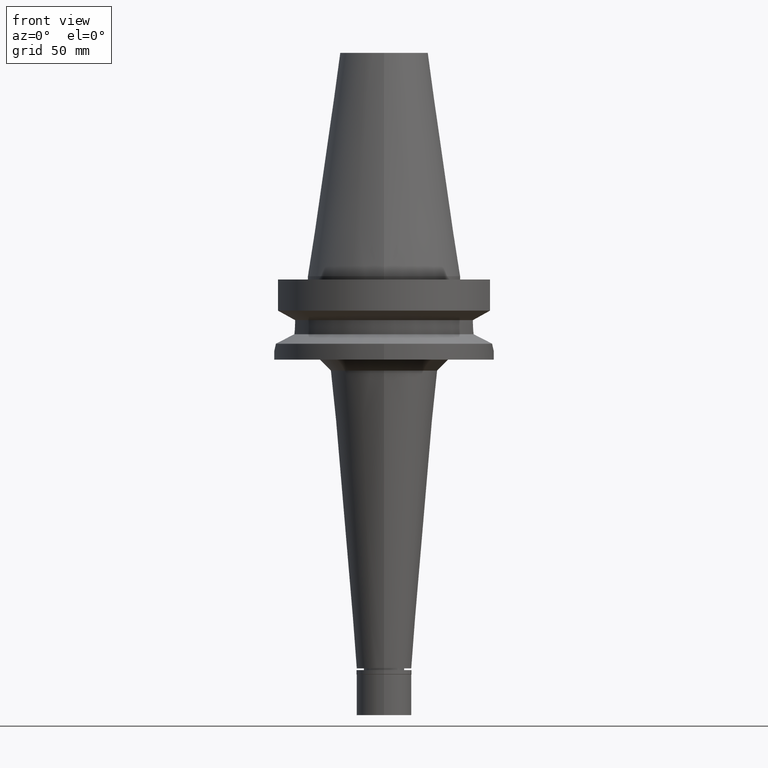
[diagram: clean part render]
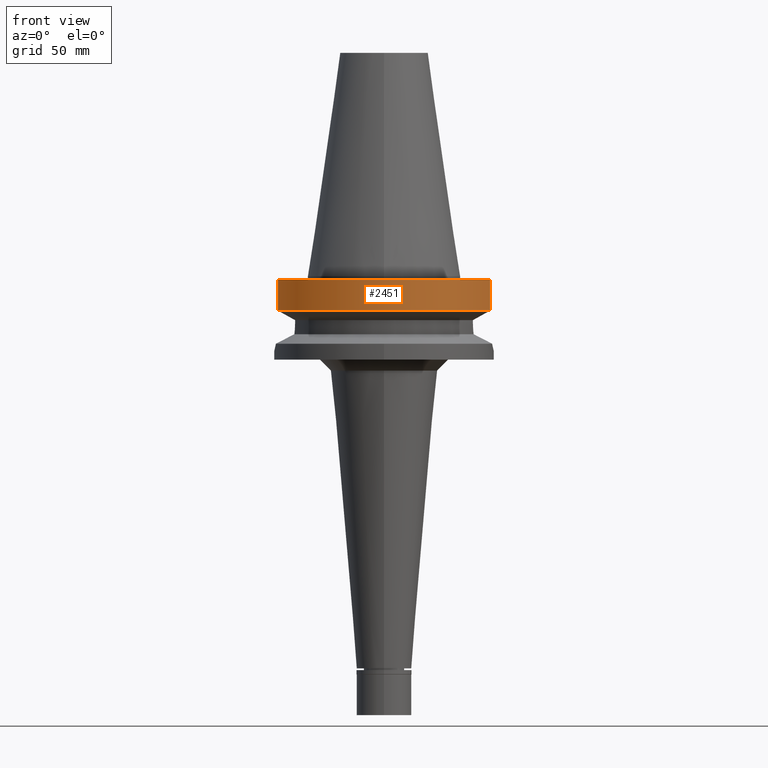
[diagram: same view with one face highlighted and labeled with its STEP entity id]
A machine part, front view. The second image highlights one B-rep face of the part: STEP entity #2451.
In plain terms, the highlighted cylindrical surface (partial cylindrical patch) has radius 50 mm, axis along (0, 0, -1).
Its self-contained STEP definition (entity closure, byte-faithful):
#104 = CARTESIAN_POINT ( 'NONE',  ( 0.0000000000000000000, 1.006319759053999930E-14, -15.66269223573000069 ) ) ;
#137 = DIRECTION ( 'NONE',  ( 0.0000000000000000000, 0.0000000000000000000, 1.000000000000000000 ) ) ;
#398 = DIRECTION ( 'NONE',  ( -7.245256712558713783E-08, -2.724472421615890928E-07, -0.9999999999999603650 ) ) ;
#512 = EDGE_LOOP ( 'NONE', ( #2361, #1744, #2070, #2434 ) ) ;
#591 = AXIS2_PLACEMENT_3D ( 'NONE', #104, #137, #2629 ) ;
#739 = VERTEX_POINT ( 'NONE', #1799 ) ;
#920 = VERTEX_POINT ( 'NONE', #2355 ) ;
#953 = VERTEX_POINT ( 'NONE', #2839 ) ;
#956 = CARTESIAN_POINT ( 'NONE',  ( -48.32056912814000071, -12.85000385727999905, -15.66265768250999990 ) ) ;
#1167 = DIRECTION ( 'NONE',  ( -7.242826062940713647E-08, 2.723558434545890236E-07, 0.9999999999999603650 ) ) ;
#1204 = CARTESIAN_POINT ( 'NONE',  ( 0.0000000000000000000, 2.652340037592999854E-14, 116.5799999999999983 ) ) ;
#1308 = EDGE_CURVE ( 'NONE', #1432, #953, #2845, .T. ) ;
#1326 = CARTESIAN_POINT ( 'NONE',  ( 48.32057015392000210, -12.84999999999999964, -1.500000000000000000 ) ) ;
#1432 = VERTEX_POINT ( 'NONE', #1675 ) ;
#1450 = FACE_OUTER_BOUND ( 'NONE', #512, .T. ) ;
#1485 = VECTOR ( 'NONE', #398, 999.9999999999998863 ) ;
#1668 = AXIS2_PLACEMENT_3D ( 'NONE', #1204, #1699, #2426 ) ;
#1675 = CARTESIAN_POINT ( 'NONE',  ( 48.32057015392000210, -12.84999999999999964, -1.500000000000000000 ) ) ;
#1699 = DIRECTION ( 'NONE',  ( 0.0000000000000000000, 0.0000000000000000000, -1.000000000000000000 ) ) ;
#1744 = ORIENTED_EDGE ( 'NONE', *, *, #2929, .T. ) ;
#1799 = CARTESIAN_POINT ( 'NONE',  ( -48.32056912814000071, -12.85000385727999905, -15.66265768250999990 ) ) ;
#1858 = DIRECTION ( 'NONE',  ( 0.0000000000000000000, -1.000000000000000000, 0.0000000000000000000 ) ) ;
#1939 = AXIS2_PLACEMENT_3D ( 'NONE', #3075, #2805, #1858 ) ;
#2070 = ORIENTED_EDGE ( 'NONE', *, *, #1308, .F. ) ;
#2354 = CIRCLE ( 'NONE', #591, 50.00000000000000000 ) ;
#2355 = CARTESIAN_POINT ( 'NONE',  ( -48.32057015392000210, -12.84999999999999964, -1.500000000000000000 ) ) ;
#2361 = ORIENTED_EDGE ( 'NONE', *, *, #3070, .F. ) ;
#2426 = DIRECTION ( 'NONE',  ( 0.0000000000000000000, -1.000000000000000000, 0.0000000000000000000 ) ) ;
#2434 = ORIENTED_EDGE ( 'NONE', *, *, #2855, .T. ) ;
#2451 = ADVANCED_FACE ( 'NONE', ( #1450 ), #2666, .T. ) ;
#2629 = DIRECTION ( 'NONE',  ( 0.0000000000000000000, -1.000000000000000000, 0.0000000000000000000 ) ) ;
#2666 = CYLINDRICAL_SURFACE ( 'NONE', #1668, 50.00000000000000000 ) ;
#2805 = DIRECTION ( 'NONE',  ( 0.0000000000000000000, 0.0000000000000000000, -1.000000000000000000 ) ) ;
#2839 = CARTESIAN_POINT ( 'NONE',  ( 48.32057015392000210, -12.84999999999999964, -15.66269223573000069 ) ) ;
#2845 = LINE ( 'NONE', #1326, #1485 ) ;
#2855 = EDGE_CURVE ( 'NONE', #1432, #920, #2911, .T. ) ;
#2911 = CIRCLE ( 'NONE', #1939, 50.00000000000000000 ) ;
#2929 = EDGE_CURVE ( 'NONE', #739, #953, #2354, .T. ) ;
#3070 = EDGE_CURVE ( 'NONE', #739, #920, #3177, .T. ) ;
#3075 = CARTESIAN_POINT ( 'NONE',  ( 0.0000000000000000000, 2.652340037592999854E-14, -1.500000000000000000 ) ) ;
#3173 = VECTOR ( 'NONE', #1167, 1000.000000000000114 ) ;
#3177 = LINE ( 'NONE', #956, #3173 ) ;